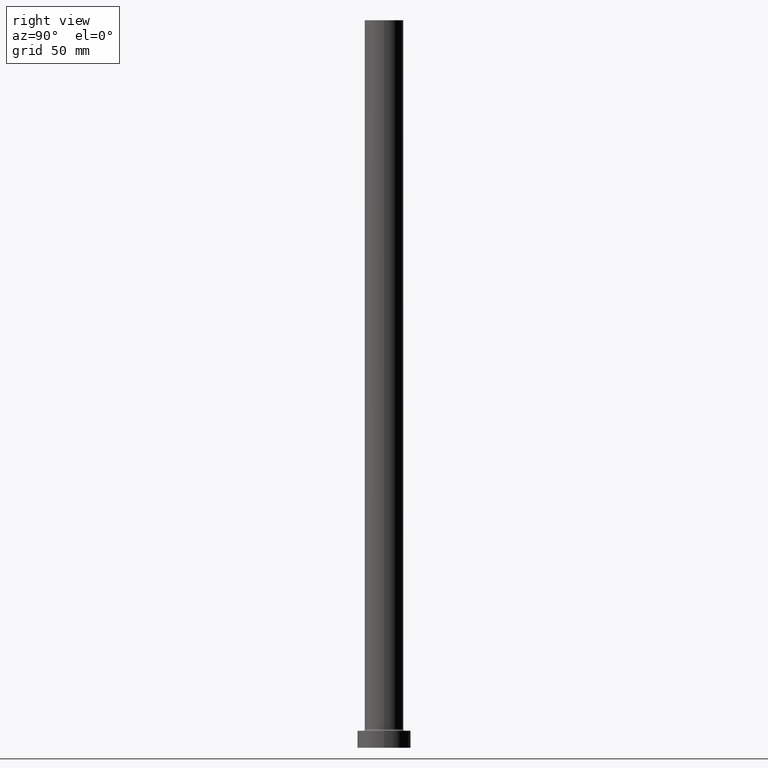
[diagram: clean part render]
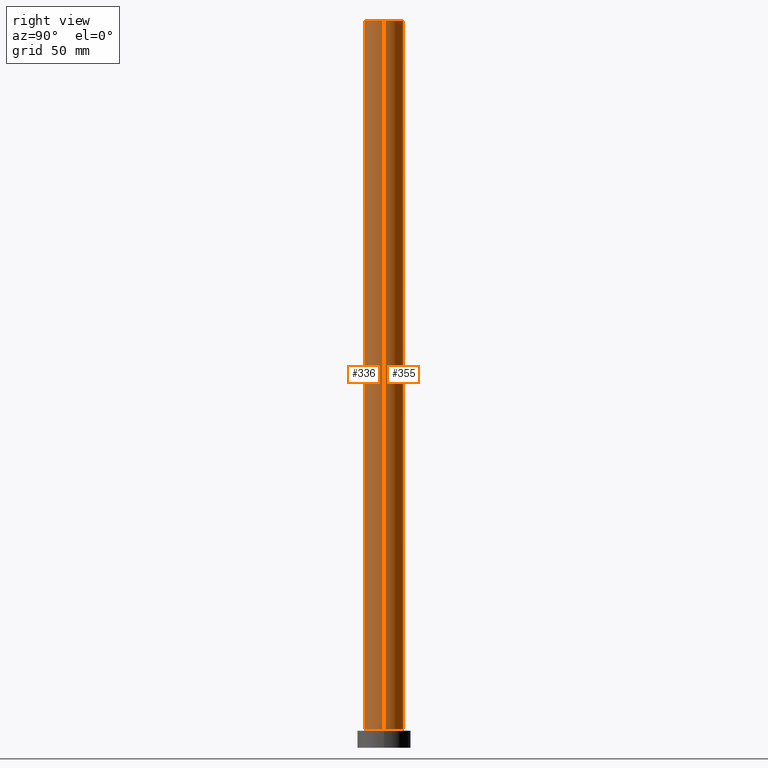
[diagram: same view with one multi-face feature highlighted, each face labeled with its STEP entity id]
A machine part, right view. The highlighted faces form ONE feature: a constant-radius fillet chain: 2 tangent blend faces with common blend radius 8 mm. The faces share edges in the B-rep.
Their STEP definitions:
[1] entity #336 (Cylinder):
#4 = DIRECTION ( 'NONE',  ( -0.000000000000000000, -0.000000000000000000, -1.000000000000000000 ) ) ;
#10 = DIRECTION ( 'NONE',  ( 0.000000000000000000, 0.000000000000000000, 1.000000000000000000 ) ) ;
#56 = ORIENTED_EDGE ( 'NONE', *, *, #324, .T. ) ;
#62 = ORIENTED_EDGE ( 'NONE', *, *, #285, .F. ) ;
#69 = AXIS2_PLACEMENT_3D ( 'NONE', #394, #10, #143 ) ;
#78 = CIRCLE ( 'NONE', #366, 8.000000000000000000 ) ;
#100 = CARTESIAN_POINT ( 'NONE',  ( 0.000000000000000000, 0.000000000000000000, 300.0000000000000000 ) ) ;
#134 = CIRCLE ( 'NONE', #69, 8.000000000000000000 ) ;
#143 = DIRECTION ( 'NONE',  ( 1.000000000000000000, 0.000000000000000000, 0.000000000000000000 ) ) ;
#147 = CARTESIAN_POINT ( 'NONE',  ( 8.000000000000000000, 9.797174393178825657E-16, 300.0000000000000000 ) ) ;
#155 = DIRECTION ( 'NONE',  ( -1.000000000000000000, 0.000000000000000000, 0.000000000000000000 ) ) ;
#161 = EDGE_LOOP ( 'NONE', ( #62, #346, #56, #403 ) ) ;
#183 = DIRECTION ( 'NONE',  ( -0.000000000000000000, -0.000000000000000000, -1.000000000000000000 ) ) ;
#188 = CYLINDRICAL_SURFACE ( 'NONE', #334, 8.000000000000000000 ) ;
#192 = EDGE_CURVE ( 'NONE', #442, #350, #78, .T. ) ;
#208 = DIRECTION ( 'NONE',  ( 1.000000000000000000, 0.000000000000000000, 0.000000000000000000 ) ) ;
#234 = VERTEX_POINT ( 'NONE', #307 ) ;
#249 = EDGE_CURVE ( 'NONE', #306, #234, #134, .T. ) ;
#265 = CARTESIAN_POINT ( 'NONE',  ( -8.000000000000000000, 0.000000000000000000, 7.699999999999985079 ) ) ;
#285 = EDGE_CURVE ( 'NONE', #350, #234, #320, .T. ) ;
#297 = CARTESIAN_POINT ( 'NONE',  ( 8.000000000000000000, 9.797174393178825657E-16, 300.0000000000000000 ) ) ;
#306 = VERTEX_POINT ( 'NONE', #265 ) ;
#307 = CARTESIAN_POINT ( 'NONE',  ( 8.000000000000000000, 9.797174393178825657E-16, 7.699999999999985079 ) ) ;
#320 = LINE ( 'NONE', #147, #344 ) ;
#324 = EDGE_CURVE ( 'NONE', #442, #306, #439, .T. ) ;
#325 = DIRECTION ( 'NONE',  ( -0.000000000000000000, -0.000000000000000000, -1.000000000000000000 ) ) ;
#326 = VECTOR ( 'NONE', #4, 1000.000000000000000 ) ;
#334 = AXIS2_PLACEMENT_3D ( 'NONE', #408, #183, #155 ) ;
#336 = ADVANCED_FACE ( 'NONE', ( #404 ), #188, .T. ) ;
#344 = VECTOR ( 'NONE', #325, 1000.000000000000000 ) ;
#346 = ORIENTED_EDGE ( 'NONE', *, *, #192, .F. ) ;
#350 = VERTEX_POINT ( 'NONE', #297 ) ;
#364 = CARTESIAN_POINT ( 'NONE',  ( -8.000000000000000000, 0.000000000000000000, 300.0000000000000000 ) ) ;
#366 = AXIS2_PLACEMENT_3D ( 'NONE', #100, #391, #208 ) ;
#391 = DIRECTION ( 'NONE',  ( 0.000000000000000000, 0.000000000000000000, 1.000000000000000000 ) ) ;
#394 = CARTESIAN_POINT ( 'NONE',  ( 0.000000000000000000, 0.000000000000000000, 7.699999999999985079 ) ) ;
#403 = ORIENTED_EDGE ( 'NONE', *, *, #249, .T. ) ;
#404 = FACE_OUTER_BOUND ( 'NONE', #161, .T. ) ;
#408 = CARTESIAN_POINT ( 'NONE',  ( 0.000000000000000000, 0.000000000000000000, 300.0000000000000000 ) ) ;
#439 = LINE ( 'NONE', #364, #326 ) ;
#442 = VERTEX_POINT ( 'NONE', #448 ) ;
#448 = CARTESIAN_POINT ( 'NONE',  ( -8.000000000000000000, 0.000000000000000000, 300.0000000000000000 ) ) ;
[2] entity #355 (Cylinder):
#4 = DIRECTION ( 'NONE',  ( -0.000000000000000000, -0.000000000000000000, -1.000000000000000000 ) ) ;
#34 = DIRECTION ( 'NONE',  ( 1.000000000000000000, 0.000000000000000000, 0.000000000000000000 ) ) ;
#38 = DIRECTION ( 'NONE',  ( -0.000000000000000000, -0.000000000000000000, -1.000000000000000000 ) ) ;
#53 = ORIENTED_EDGE ( 'NONE', *, *, #324, .F. ) ;
#147 = CARTESIAN_POINT ( 'NONE',  ( 8.000000000000000000, 9.797174393178825657E-16, 300.0000000000000000 ) ) ;
#184 = EDGE_CURVE ( 'NONE', #350, #442, #310, .T. ) ;
#200 = ORIENTED_EDGE ( 'NONE', *, *, #285, .T. ) ;
#215 = CARTESIAN_POINT ( 'NONE',  ( 0.000000000000000000, 0.000000000000000000, 300.0000000000000000 ) ) ;
#230 = AXIS2_PLACEMENT_3D ( 'NONE', #441, #38, #400 ) ;
#234 = VERTEX_POINT ( 'NONE', #307 ) ;
#259 = FACE_OUTER_BOUND ( 'NONE', #435, .T. ) ;
#265 = CARTESIAN_POINT ( 'NONE',  ( -8.000000000000000000, 0.000000000000000000, 7.699999999999985079 ) ) ;
#271 = CIRCLE ( 'NONE', #375, 8.000000000000000000 ) ;
#272 = EDGE_CURVE ( 'NONE', #234, #306, #271, .T. ) ;
#285 = EDGE_CURVE ( 'NONE', #350, #234, #320, .T. ) ;
#292 = AXIS2_PLACEMENT_3D ( 'NONE', #215, #302, #34 ) ;
#294 = CYLINDRICAL_SURFACE ( 'NONE', #230, 8.000000000000000000 ) ;
#297 = CARTESIAN_POINT ( 'NONE',  ( 8.000000000000000000, 9.797174393178825657E-16, 300.0000000000000000 ) ) ;
#302 = DIRECTION ( 'NONE',  ( 0.000000000000000000, 0.000000000000000000, 1.000000000000000000 ) ) ;
#306 = VERTEX_POINT ( 'NONE', #265 ) ;
#307 = CARTESIAN_POINT ( 'NONE',  ( 8.000000000000000000, 9.797174393178825657E-16, 7.699999999999985079 ) ) ;
#310 = CIRCLE ( 'NONE', #292, 8.000000000000000000 ) ;
#320 = LINE ( 'NONE', #147, #344 ) ;
#324 = EDGE_CURVE ( 'NONE', #442, #306, #439, .T. ) ;
#325 = DIRECTION ( 'NONE',  ( -0.000000000000000000, -0.000000000000000000, -1.000000000000000000 ) ) ;
#326 = VECTOR ( 'NONE', #4, 1000.000000000000000 ) ;
#333 = CARTESIAN_POINT ( 'NONE',  ( 0.000000000000000000, 0.000000000000000000, 7.699999999999985079 ) ) ;
#344 = VECTOR ( 'NONE', #325, 1000.000000000000000 ) ;
#350 = VERTEX_POINT ( 'NONE', #297 ) ;
#355 = ADVANCED_FACE ( 'NONE', ( #259 ), #294, .T. ) ;
#364 = CARTESIAN_POINT ( 'NONE',  ( -8.000000000000000000, 0.000000000000000000, 300.0000000000000000 ) ) ;
#371 = DIRECTION ( 'NONE',  ( 1.000000000000000000, 0.000000000000000000, 0.000000000000000000 ) ) ;
#375 = AXIS2_PLACEMENT_3D ( 'NONE', #333, #401, #371 ) ;
#400 = DIRECTION ( 'NONE',  ( -1.000000000000000000, 0.000000000000000000, 0.000000000000000000 ) ) ;
#401 = DIRECTION ( 'NONE',  ( 0.000000000000000000, 0.000000000000000000, 1.000000000000000000 ) ) ;
#435 = EDGE_LOOP ( 'NONE', ( #461, #200, #446, #53 ) ) ;
#439 = LINE ( 'NONE', #364, #326 ) ;
#441 = CARTESIAN_POINT ( 'NONE',  ( 0.000000000000000000, 0.000000000000000000, 300.0000000000000000 ) ) ;
#442 = VERTEX_POINT ( 'NONE', #448 ) ;
#446 = ORIENTED_EDGE ( 'NONE', *, *, #272, .T. ) ;
#448 = CARTESIAN_POINT ( 'NONE',  ( -8.000000000000000000, 0.000000000000000000, 300.0000000000000000 ) ) ;
#461 = ORIENTED_EDGE ( 'NONE', *, *, #184, .F. ) ;